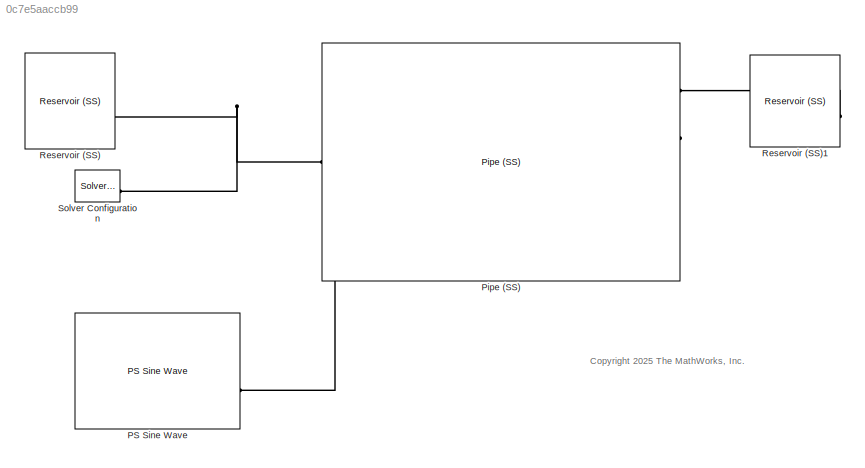
MODEL slx_0c7e5aaccb99
KIND model
CONFIG AbsTol = auto
CONFIG EnableMultiTasking = off
CONFIG FixedStep = auto
CONFIG MaxStep = auto
CONFIG MinStep = auto
CONFIG RelTol = 1e-3
CONFIG SampleTimeConstraint = Unconstrained
CONFIG SolverName = VariableStepAuto
CONFIG StartTime = 0.0
CONFIG StopTime = 10.0
BLOCK [Reference] PS Sine Wave  REF=fl_lib/Physical Signals/Sources/PS Sine Wave
  SourceBlock = fl_lib/Physical Signals/Sources/PS Sine Wave
  SourceType = PS Sine Wave
BLOCK [Reference] Pipe (SS)  REF=customization_lib/solution/elements/Pipe (SS)
  SourceBlock = customization_lib/solution/elements/Pipe (SS)
  SourceProductName = Customization
  SourceType = Pipe (SS)
BLOCK [Reference] Reservoir (SS)  REF=customization_lib/solution/elements/Reservoir (SS)
  SourceBlock = customization_lib/solution/elements/Reservoir (SS)
  SourceProductName = Customization
  SourceType = Reservoir (SS)
BLOCK [Reference] Reservoir (SS)1  REF=customization_lib/solution/elements/Reservoir (SS)
  NameLocation = top
  SourceBlock = customization_lib/solution/elements/Reservoir (SS)
  SourceProductName = Customization
  SourceType = Reservoir (SS)
BLOCK [Reference] Solver Configuration  REF=nesl_utility/Solver
Configuration
  SourceBlock = nesl_utility/Solver\nConfiguration
  SourceType = Solver\nConfiguration
ANNOTATION (root): <copyright redacted>
PLINE PS Sine Wave:RConn1 -- Pipe (SS):RConn3
PNET net1: Pipe (SS):LConn1 -- Reservoir (SS):LConn1 -- Solver Configuration:RConn1
PLINE Pipe (SS):RConn1 -- Reservoir (SS)1:LConn1
note: PNET lines group multi-terminal physical nets as a canonical sorted terminal list (undirected conserving connections); 2-terminal nets keep the pairwise PLINE form
